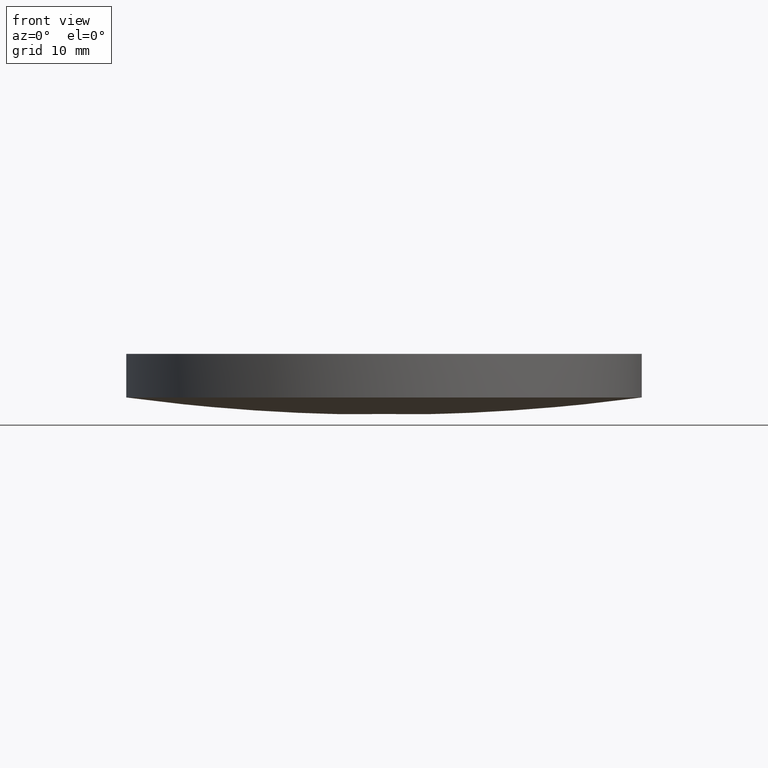
[diagram: clean part render]
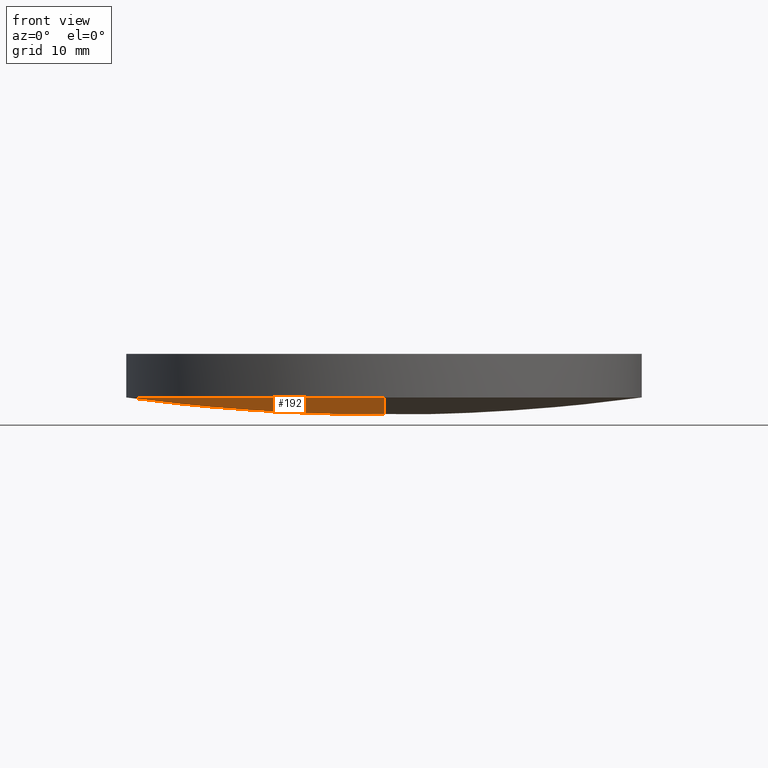
[diagram: same view with one face highlighted and labeled with its STEP entity id]
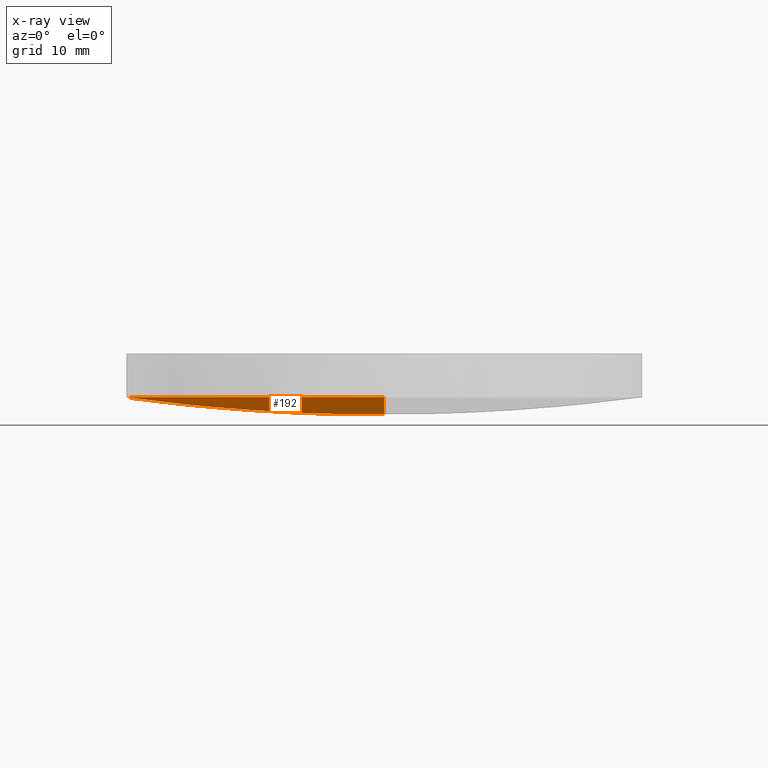
[diagram: x-ray of the same camera — body ghosted, the highlighted face saturated]
A machine part, front view. The second image highlights one B-rep face of the part: STEP entity #192.
The next image is the same camera in x-ray: the body ghosted, the highlighted face saturated — about 0% of this face is hidden behind the body in this view.
In plain terms, the highlighted face is a freeform B-spline surface patch.
Its self-contained STEP definition (entity closure, byte-faithful):
#1 = VERTEX_POINT ( 'NONE', #43 ) ;
#9 = CARTESIAN_POINT ( 'NONE',  ( -16.92308615580277800, -25.70294600501160100, 2.312552776829380100 ) ) ;
#23 = CARTESIAN_POINT ( 'NONE',  ( -8.471132232603034500, 25.70294600501151500, 1.742854451087751900 ) ) ;
#27 = CARTESIAN_POINT ( 'NONE',  ( -9.020562075079398200E-014, -8.620253173283169100, -0.5845184676352351800 ) ) ;
#29 = CARTESIAN_POINT ( 'NONE',  ( 9.992007221626412800E-016, 4.884981308350691100E-015, 1.701828307744319900 ) ) ;
#34 =( BOUNDED_SURFACE ( )  B_SPLINE_SURFACE ( 3, 3, ( 
 ( #64, #9, #184, #226 ),
 ( #201, #222, #49, #27 ),
 ( #150, #114, #129, #202 ),
 ( #196, #103, #23, #147 ) ),
 .UNSPECIFIED., .F., .F., .F. ) 
 B_SPLINE_SURFACE_WITH_KNOTS ( ( 4, 4 ),
 ( 4, 4 ),
 ( 0.0000000000000000000, 1.000000000000000000 ),
 ( 0.0000000000000000000, 1.000000000000000000 ),
 .UNSPECIFIED. ) 
 GEOMETRIC_REPRESENTATION_ITEM ( )  RATIONAL_B_SPLINE_SURFACE ( (
 ( 1.000000000000000000, 0.9984906929497666700, 0.9984906929497666700, 1.000000000000000000),
 ( 0.9938975684485722400, 0.9923974718413030000, 0.9923974718413030000, 0.9938975684485722400),
 ( 0.9938975684485722400, 0.9923974718413030000, 0.9923974718413030000, 0.9938975684485722400),
 ( 1.000000000000000000, 0.9984906929497666700, 0.9984906929497666700, 1.000000000000000000) ) ) 
 REPRESENTATION_ITEM ( '' )  SURFACE ( )  );
#38 = VERTEX_POINT ( 'NONE', #142 ) ;
#43 = CARTESIAN_POINT ( 'NONE',  ( -4.263256414560599900E-014, 25.39999999999995900, 1.701828307744333000 ) ) ;
#48 = CIRCLE ( 'NONE', #215, 190.4000000000000100 ) ;
#49 = CARTESIAN_POINT ( 'NONE',  ( -8.575636536915057600, -8.620253173283167300, -0.5845184676352330700 ) ) ;
#64 = CARTESIAN_POINT ( 'NONE',  ( -25.31759198866573600, -25.70294600501160400, 3.449369879214042800 ) ) ;
#65 = ORIENTED_EDGE ( 'NONE', *, *, #71, .T. ) ;
#71 = EDGE_CURVE ( 'NONE', #178, #38, #74, .T. ) ;
#72 = DIRECTION ( 'NONE',  ( 1.000000000000000000, 0.0000000000000000000, 0.0000000000000000000 ) ) ;
#73 = ORIENTED_EDGE ( 'NONE', *, *, #204, .F. ) ;
#74 = CIRCLE ( 'NONE', #163, 25.39999999999999900 ) ;
#86 = DIRECTION ( 'NONE',  ( 1.000000000000000000, 0.0000000000000000000, 0.0000000000000000000 ) ) ;
#91 = CIRCLE ( 'NONE', #231, 25.39999999999999900 ) ;
#92 = DIRECTION ( 'NONE',  ( -0.0000000000000000000, -0.0000000000000000000, -1.000000000000000000 ) ) ;
#93 = ORIENTED_EDGE ( 'NONE', *, *, #225, .T. ) ;
#103 = CARTESIAN_POINT ( 'NONE',  ( -16.92308615580278200, 25.70294600501151500, 2.312552776829408100 ) ) ;
#111 = CARTESIAN_POINT ( 'NONE',  ( 9.992007221626412800E-016, 4.884981308350691100E-015, 1.701828307744319900 ) ) ;
#114 = CARTESIAN_POINT ( 'NONE',  ( -17.13185817080191600, 8.620253173283083800, -0.007792046290202092800 ) ) ;
#129 = CARTESIAN_POINT ( 'NONE',  ( -8.575636536915059300, 8.620253173283083800, -0.5845184676352083200 ) ) ;
#142 = CARTESIAN_POINT ( 'NONE',  ( -25.39999999999999900, 7.995584178184967200E-015, 1.701828307744319900 ) ) ;
#147 = CARTESIAN_POINT ( 'NONE',  ( -9.020562075079396900E-014, 25.70294600501151900, 1.742854451087749500 ) ) ;
#150 = CARTESIAN_POINT ( 'NONE',  ( -25.62992300475450900, 8.620253173283083800, 1.143049424638430000 ) ) ;
#159 = FACE_OUTER_BOUND ( 'NONE', #170, .T. ) ;
#163 = AXIS2_PLACEMENT_3D ( 'NONE', #111, #177, #194 ) ;
#170 = EDGE_LOOP ( 'NONE', ( #73, #65, #93 ) ) ;
#177 = DIRECTION ( 'NONE',  ( -0.0000000000000000000, -0.0000000000000000000, -1.000000000000000000 ) ) ;
#178 = VERTEX_POINT ( 'NONE', #198 ) ;
#184 = CARTESIAN_POINT ( 'NONE',  ( -8.471132232603032700, -25.70294600501159700, 1.742854451087725100 ) ) ;
#192 = ADVANCED_FACE ( 'NONE', ( #159 ), #34, .T. ) ;
#194 = DIRECTION ( 'NONE',  ( 1.000000000000000000, 0.0000000000000000000, 0.0000000000000000000 ) ) ;
#196 = CARTESIAN_POINT ( 'NONE',  ( -25.31759198866574000, 25.70294600501151500, 3.449369879214070300 ) ) ;
#198 = CARTESIAN_POINT ( 'NONE',  ( -4.263256414560599900E-014, -25.40000000000001300, 1.701828307744305300 ) ) ;
#201 = CARTESIAN_POINT ( 'NONE',  ( -25.62992300475450900, -8.620253173283169100, 1.143049424638404900 ) ) ;
#202 = CARTESIAN_POINT ( 'NONE',  ( -9.367506770274757000E-014, 8.620253173283083800, -0.5845184676352106500 ) ) ;
#204 = EDGE_CURVE ( 'NONE', #178, #1, #48, .T. ) ;
#207 = DIRECTION ( 'NONE',  ( 0.0000000000000000000, -1.000000000000000000, -5.831003280594309600E-016 ) ) ;
#215 = AXIS2_PLACEMENT_3D ( 'NONE', #232, #86, #207 ) ;
#222 = CARTESIAN_POINT ( 'NONE',  ( -17.13185817080191200, -8.620253173283167300, -0.007792046290226812600 ) ) ;
#225 = EDGE_CURVE ( 'NONE', #38, #1, #91, .T. ) ;
#226 = CARTESIAN_POINT ( 'NONE',  ( -9.020562075079396900E-014, -25.70294600501160100, 1.742854451087722600 ) ) ;
#231 = AXIS2_PLACEMENT_3D ( 'NONE', #29, #92, #72 ) ;
#232 = CARTESIAN_POINT ( 'NONE',  ( -4.263256414560599900E-014, -5.684341886080800200E-014, 190.4000000000000100 ) ) ;